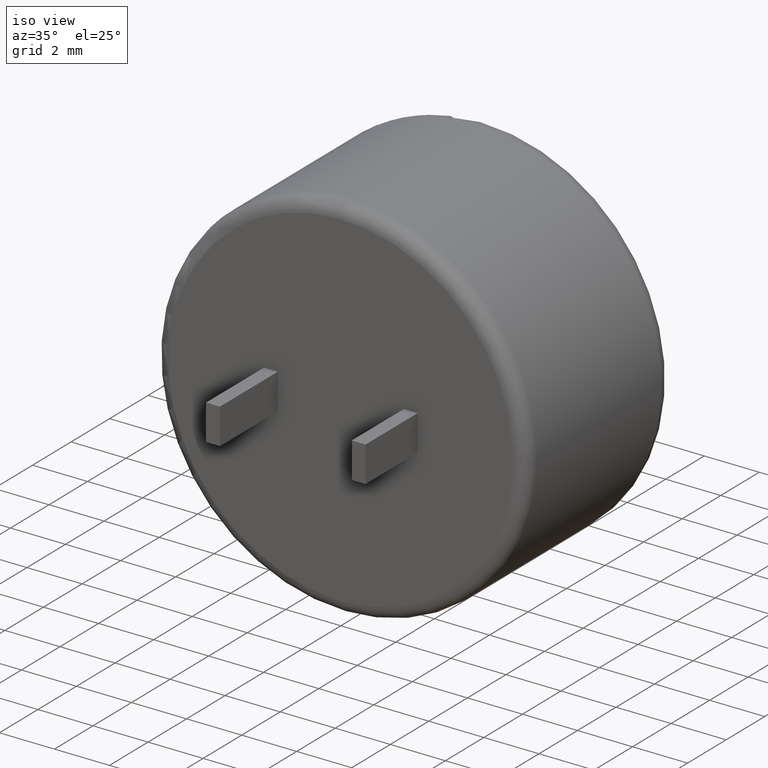
[diagram: clean part render]
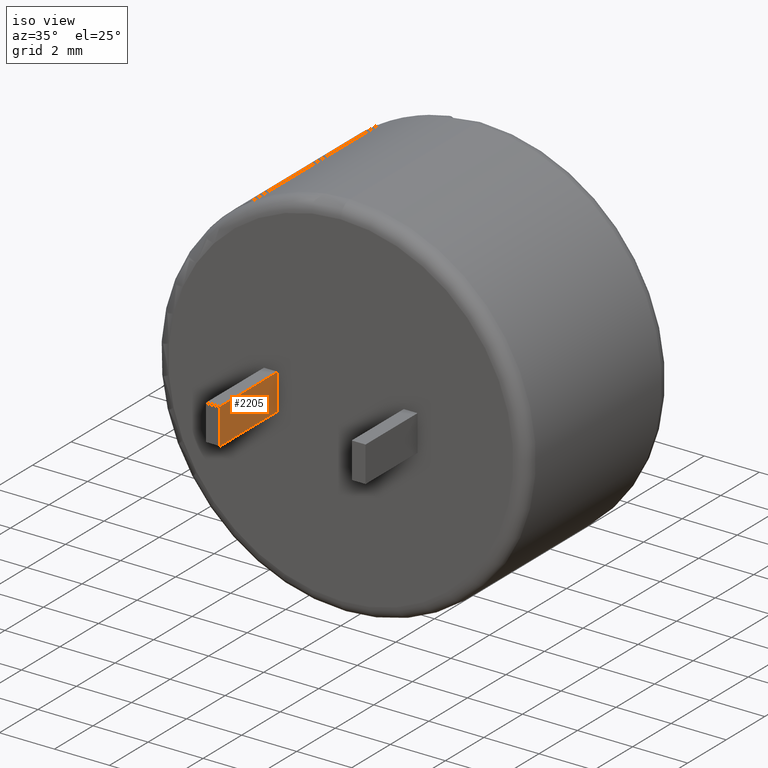
[diagram: same view with one face highlighted and labeled with its STEP entity id]
A machine part, iso view. The second image highlights one B-rep face of the part: STEP entity #2205.
In plain terms, the highlighted planar face has unit normal (1, 0, 0).
Its self-contained STEP definition (entity closure, byte-faithful):
#31 = CARTESIAN_POINT ( 'NONE',  ( -2.289999999999999100, -3.000000000000000000, 0.6499999999999986900 ) ) ;
#285 = VECTOR ( 'NONE', #1175, 1000.000000000000000 ) ;
#362 = CARTESIAN_POINT ( 'NONE',  ( -2.289999999999999100, -3.000000000000000000, 0.6499999999999986900 ) ) ;
#377 = CARTESIAN_POINT ( 'NONE',  ( -2.289999999999999100, 0.0000000000000000000, 0.6499999999999986900 ) ) ;
#458 = VERTEX_POINT ( 'NONE', #31 ) ;
#497 = DIRECTION ( 'NONE',  ( -0.0000000000000000000, 1.000000000000000000, -0.0000000000000000000 ) ) ;
#533 = CARTESIAN_POINT ( 'NONE',  ( -2.289999999999999100, 0.0000000000000000000, -0.6500000000000012400 ) ) ;
#905 = ORIENTED_EDGE ( 'NONE', *, *, #2712, .T. ) ;
#1112 = VERTEX_POINT ( 'NONE', #533 ) ;
#1144 = CARTESIAN_POINT ( 'NONE',  ( -2.289999999999999100, -3.000000000000000000, -0.6500000000000012400 ) ) ;
#1152 = ORIENTED_EDGE ( 'NONE', *, *, #1209, .F. ) ;
#1172 = VERTEX_POINT ( 'NONE', #2653 ) ;
#1175 = DIRECTION ( 'NONE',  ( -0.0000000000000000000, 1.000000000000000000, -0.0000000000000000000 ) ) ;
#1205 = LINE ( 'NONE', #2231, #285 ) ;
#1209 = EDGE_CURVE ( 'NONE', #458, #1172, #1205, .T. ) ;
#1304 = EDGE_LOOP ( 'NONE', ( #2490, #1152, #905, #1834 ) ) ;
#1371 = EDGE_CURVE ( 'NONE', #2526, #1112, #2499, .T. ) ;
#1394 = DIRECTION ( 'NONE',  ( 1.000000000000000000, 0.0000000000000000000, 0.0000000000000000000 ) ) ;
#1465 = LINE ( 'NONE', #2203, #2427 ) ;
#1602 = DIRECTION ( 'NONE',  ( 0.0000000000000000000, 0.0000000000000000000, -1.000000000000000000 ) ) ;
#1709 = LINE ( 'NONE', #377, #1845 ) ;
#1723 = VECTOR ( 'NONE', #497, 1000.000000000000000 ) ;
#1793 = EDGE_CURVE ( 'NONE', #1172, #1112, #1709, .T. ) ;
#1834 = ORIENTED_EDGE ( 'NONE', *, *, #1371, .T. ) ;
#1840 = FACE_OUTER_BOUND ( 'NONE', #1304, .T. ) ;
#1845 = VECTOR ( 'NONE', #2325, 1000.000000000000000 ) ;
#2203 = CARTESIAN_POINT ( 'NONE',  ( -2.289999999999999100, -3.000000000000000000, 0.6499999999999986900 ) ) ;
#2205 = ADVANCED_FACE ( 'NONE', ( #1840 ), #2672, .T. ) ;
#2231 = CARTESIAN_POINT ( 'NONE',  ( -2.289999999999999100, -3.000000000000000000, 0.6499999999999986900 ) ) ;
#2325 = DIRECTION ( 'NONE',  ( 0.0000000000000000000, -0.0000000000000000000, -1.000000000000000000 ) ) ;
#2427 = VECTOR ( 'NONE', #2463, 1000.000000000000000 ) ;
#2463 = DIRECTION ( 'NONE',  ( 0.0000000000000000000, -0.0000000000000000000, -1.000000000000000000 ) ) ;
#2490 = ORIENTED_EDGE ( 'NONE', *, *, #1793, .F. ) ;
#2499 = LINE ( 'NONE', #1144, #1723 ) ;
#2526 = VERTEX_POINT ( 'NONE', #2763 ) ;
#2633 = AXIS2_PLACEMENT_3D ( 'NONE', #362, #1394, #1602 ) ;
#2653 = CARTESIAN_POINT ( 'NONE',  ( -2.289999999999999100, 0.0000000000000000000, 0.6499999999999986900 ) ) ;
#2672 = PLANE ( 'NONE',  #2633 ) ;
#2712 = EDGE_CURVE ( 'NONE', #458, #2526, #1465, .T. ) ;
#2763 = CARTESIAN_POINT ( 'NONE',  ( -2.289999999999999100, -3.000000000000000000, -0.6500000000000012400 ) ) ;